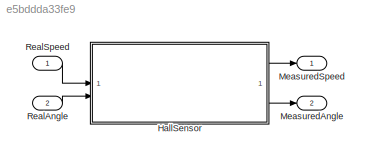
MODEL slx_e5bddda33fe9
KIND model
CONFIG AbsTol = auto
CONFIG EnableMultiTasking = off
CONFIG FixedStep = auto
CONFIG MaxStep = auto
CONFIG MinStep = auto
CONFIG RelTol = 1e-3
CONFIG SampleTimeConstraint = Unconstrained
CONFIG SolverName = VariableStepAuto
CONFIG StartTime = 0.0
CONFIG StopTime = 10.0
BLOCK [Outport]  MeasuredAngle
  Port = 2
BLOCK [SubSystem] HallSensor
  ReferencedSubsystem = HallSensor
BLOCK [Outport] MeasuredSpeed
BLOCK [Inport] RealAngle
  Port = 2
BLOCK [Inport] RealSpeed
LINE HallSensor:1 -> MeasuredSpeed:1
LINE HallSensor:2 ->  MeasuredAngle:1
LINE RealAngle:1 -> HallSensor:2
LINE RealSpeed:1 -> HallSensor:1
